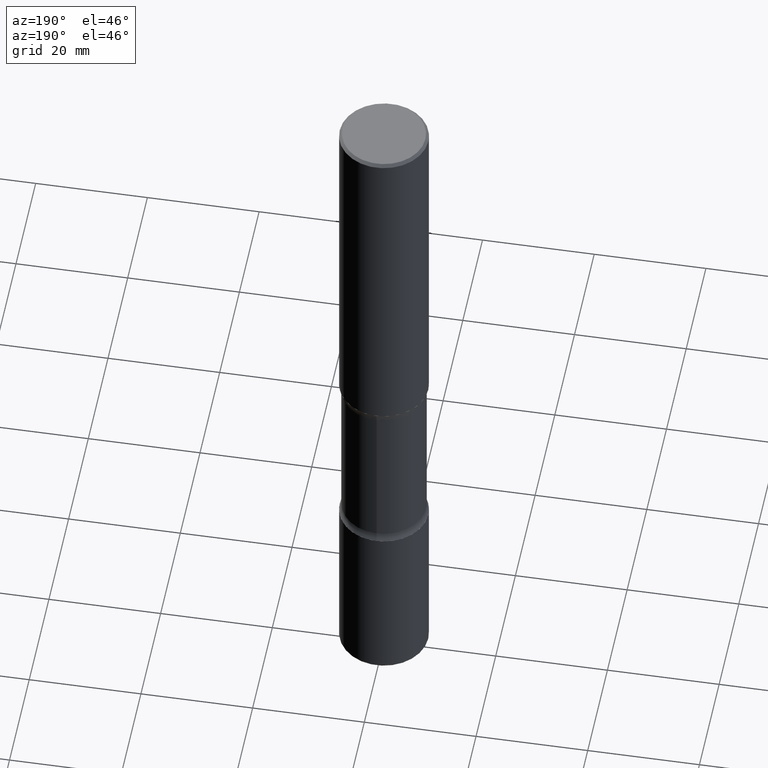
[diagram: clean part render]
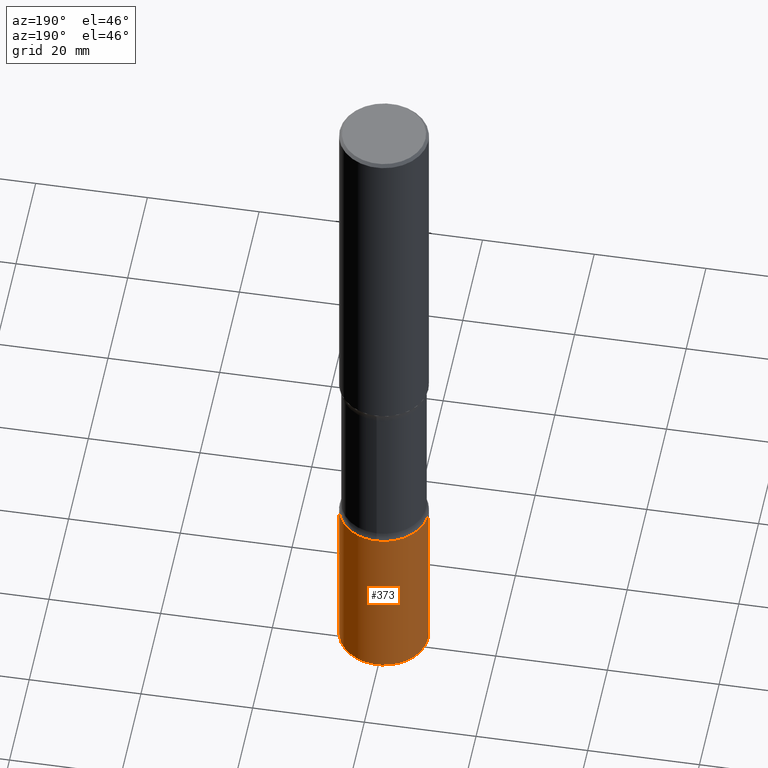
[diagram: same view with one face highlighted and labeled with its STEP entity id]
A machine part, auxiliary view. The second image highlights one B-rep face of the part: STEP entity #373.
In plain terms, the highlighted cylindrical surface (partial cylindrical patch) has radius 7.9375 mm, axis along (-0, 0, 1).
Its self-contained STEP definition (entity closure, byte-faithful):
#11 = EDGE_CURVE ( 'NONE', #87, #347, #546, .T. ) ;
#14 = CARTESIAN_POINT ( 'NONE',  ( 9.170508023194261117E-29, -1.309305502066179584E-14, -3.749999999999999556 ) ) ;
#19 = DIRECTION ( 'NONE',  ( 1.000000000000000000, -6.982962677686265133E-15, 0.000000000000000000 ) ) ;
#21 = DIRECTION ( 'NONE',  ( 1.000000000000000000, -6.982962677686266711E-15, 4.876176775795935232E-29 ) ) ;
#36 = VECTOR ( 'NONE', #485, 39.37007874015748143 ) ;
#54 = CARTESIAN_POINT ( 'NONE',  ( -0.3125000000000001665, -1.302859869814712249E-14, -3.749999999999999556 ) ) ;
#61 = CARTESIAN_POINT ( 'NONE',  ( 0.3125000000000001665, -2.182175836776959530E-15, 1.523805242436230636E-29 ) ) ;
#80 = VECTOR ( 'NONE', #154, 39.37007874015748143 ) ;
#84 = AXIS2_PLACEMENT_3D ( 'NONE', #14, #98, #19 ) ;
#87 = VERTEX_POINT ( 'NONE', #513 ) ;
#88 = CIRCLE ( 'NONE', #84, 0.3125000000000001665 ) ;
#98 = DIRECTION ( 'NONE',  ( -2.445468806185136597E-29, 3.491481338843145583E-15, 1.000000000000000000 ) ) ;
#107 = DIRECTION ( 'NONE',  ( 1.000000000000000000, -6.982962677686264344E-15, 0.000000000000000000 ) ) ;
#110 = AXIS2_PLACEMENT_3D ( 'NONE', #418, #147, #21 ) ;
#147 = DIRECTION ( 'NONE',  ( -2.445468806185136597E-29, 3.491481338843145583E-15, 1.000000000000000000 ) ) ;
#154 = DIRECTION ( 'NONE',  ( -2.445468806185136877E-29, 3.491481338843145188E-15, 1.000000000000000000 ) ) ;
#158 = CARTESIAN_POINT ( 'NONE',  ( -0.3125000000000001665, 2.220446049250314264E-15, -1.537167215704658792E-29 ) ) ;
#164 = AXIS2_PLACEMENT_3D ( 'NONE', #334, #535, #107 ) ;
#178 = EDGE_CURVE ( 'NONE', #291, #411, #300, .T. ) ;
#198 = EDGE_LOOP ( 'NONE', ( #482, #372, #237, #338 ) ) ;
#204 = CARTESIAN_POINT ( 'NONE',  ( -0.3125000000000004441, -1.518458842488276381E-14, -4.984999999999999432 ) ) ;
#207 = FACE_OUTER_BOUND ( 'NONE', #198, .T. ) ;
#237 = ORIENTED_EDGE ( 'NONE', *, *, #286, .F. ) ;
#243 = CYLINDRICAL_SURFACE ( 'NONE', #110, 0.3125000000000001665 ) ;
#286 = EDGE_CURVE ( 'NONE', #347, #411, #88, .T. ) ;
#291 = VERTEX_POINT ( 'NONE', #204 ) ;
#300 = LINE ( 'NONE', #158, #36 ) ;
#334 = CARTESIAN_POINT ( 'NONE',  ( 1.219066199883290567E-28, -1.740503447413308005E-14, -4.984999999999999432 ) ) ;
#338 = ORIENTED_EDGE ( 'NONE', *, *, #11, .F. ) ;
#340 = CARTESIAN_POINT ( 'NONE',  ( 0.3125000000000001665, -1.527523085743875418E-14, -3.749999999999999556 ) ) ;
#347 = VERTEX_POINT ( 'NONE', #340 ) ;
#353 = EDGE_CURVE ( 'NONE', #87, #291, #412, .T. ) ;
#372 = ORIENTED_EDGE ( 'NONE', *, *, #178, .T. ) ;
#373 = ADVANCED_FACE ( 'NONE', ( #207 ), #243, .T. ) ;
#411 = VERTEX_POINT ( 'NONE', #54 ) ;
#412 = CIRCLE ( 'NONE', #164, 0.3125000000000002220 ) ;
#418 = CARTESIAN_POINT ( 'NONE',  ( 0.000000000000000000, 0.000000000000000000, 0.000000000000000000 ) ) ;
#482 = ORIENTED_EDGE ( 'NONE', *, *, #353, .T. ) ;
#485 = DIRECTION ( 'NONE',  ( -2.445468806185136877E-29, 3.491481338843145188E-15, 1.000000000000000000 ) ) ;
#513 = CARTESIAN_POINT ( 'NONE',  ( 0.3125000000000004441, -1.958721031091003681E-14, -4.984999999999999432 ) ) ;
#535 = DIRECTION ( 'NONE',  ( -2.445468806185136597E-29, 3.491481338843145583E-15, 1.000000000000000000 ) ) ;
#546 = LINE ( 'NONE', #61, #80 ) ;